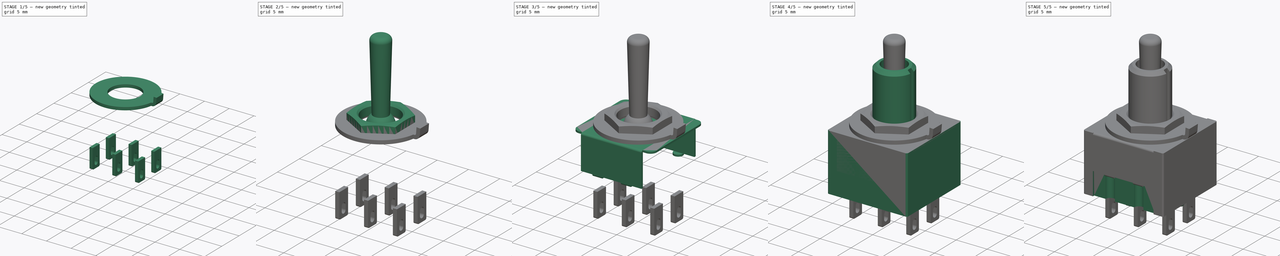
[diagram: build sequence overview — one tinted view per stage of 5, left to right]
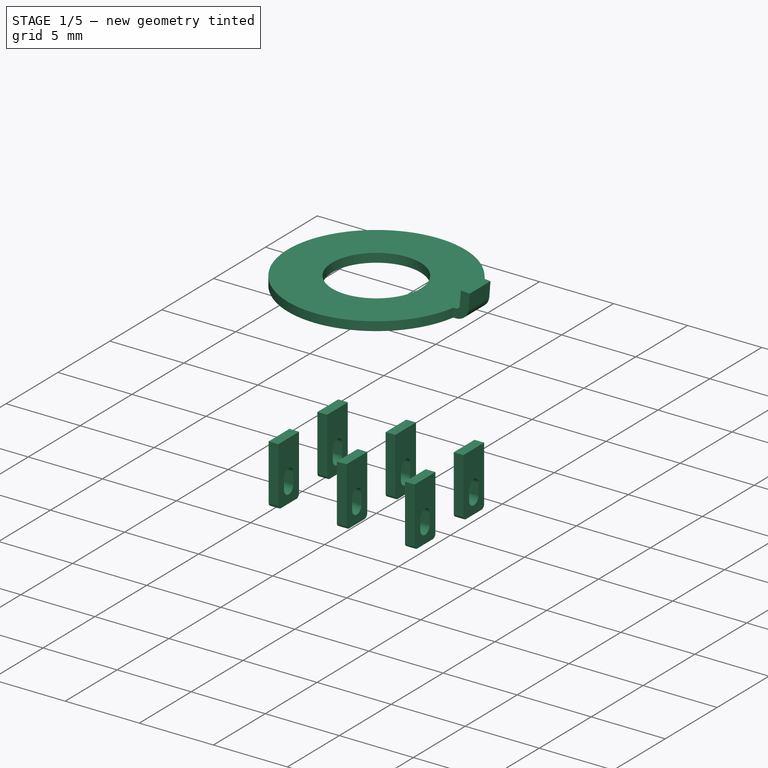
[diagram: stage 1 of 5 — iso view after this stage's code; geometry added in this stage tinted green]
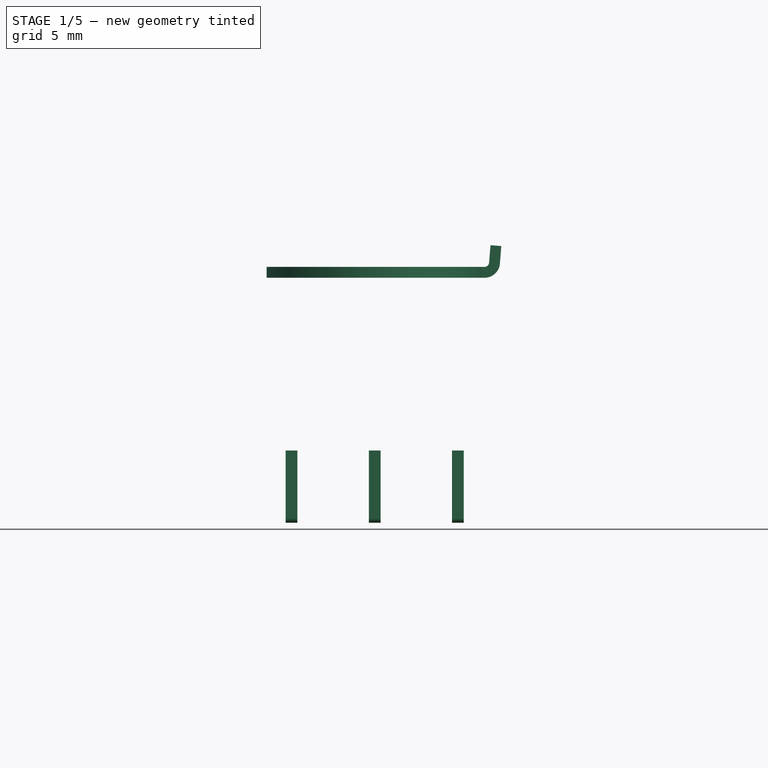
[diagram: stage 1 of 5 — front view after this stage's code; geometry added in this stage tinted green]
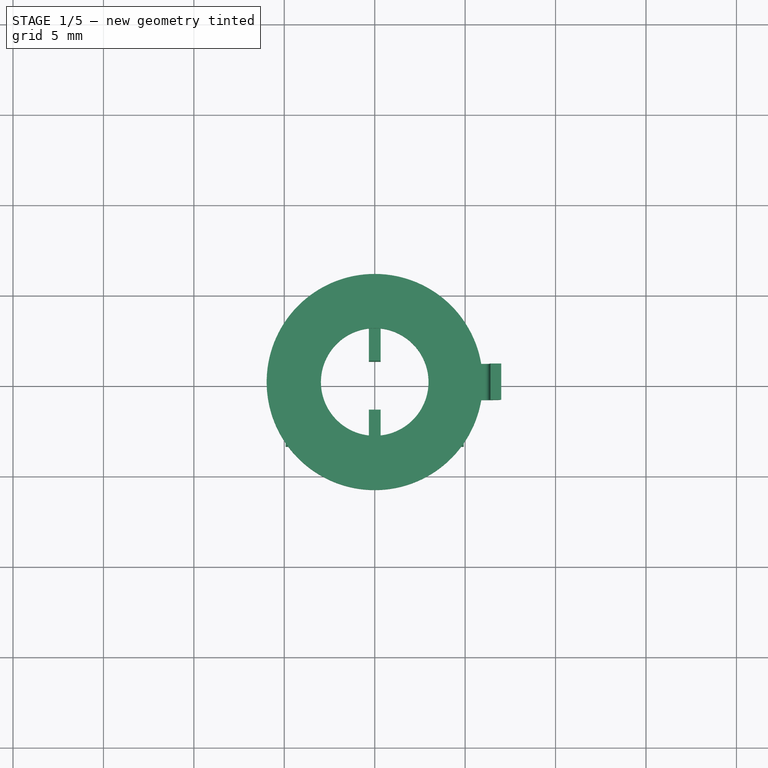
[diagram: stage 1 of 5 — top view after this stage's code; geometry added in this stage tinted green]
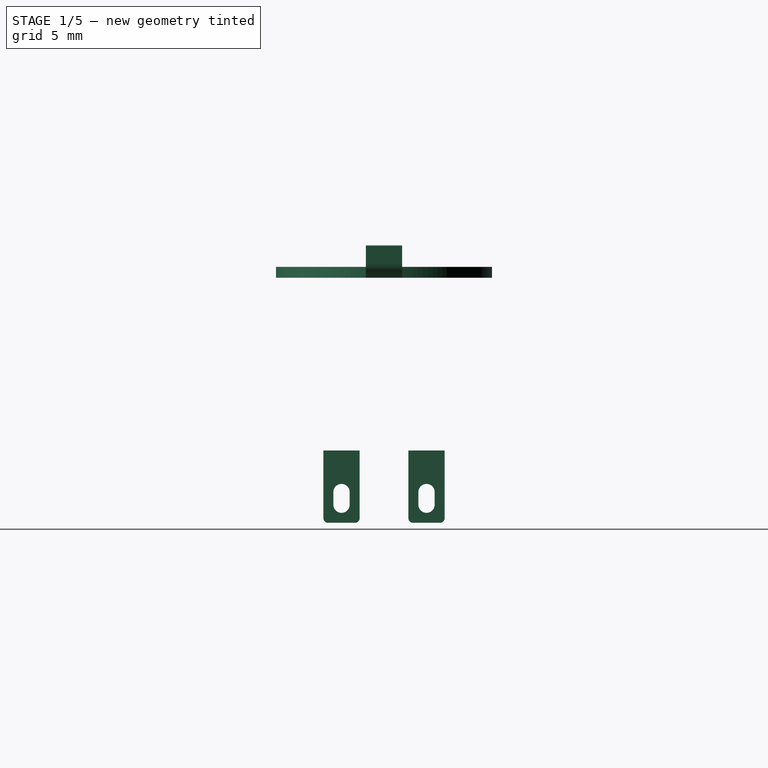
[diagram: stage 1 of 5 — right view after this stage's code; geometry added in this stage tinted green]
FCSTD DOCUMENT  (FreeCAD 0.20R29177 +426 (Git))
Label: 6mm DPDT Mini Toggle Switch
License: All rights reserved
LicenseURL: http://en.wikipedia.org/wiki/All_rights_reserved
objects: Sketcher::SketchObject×19, PartDesign::Pad×11, PartDesign::Body×7, PartDesign::Fillet×6, PartDesign::Pocket×6, PartDesign::Chamfer×2, PartDesign::Revolution×2, PartDesign::FeatureBase×1, Part::FeaturePython×1
note: 81 computed .brp shape members not serialized (recipe doc carries the construction recipe); baked Part::Feature solids carry a one-line shape summary decoded from their .brp

FEATURE [PartDesign::Body] Body004
  Group = -> [Clone]
  Origin = -> Origin004
  Placement = pos=(0,0,5.35) rot=(0,0,1;0rad)
  Tip = -> Clone
FEATURE [Sketcher::SketchObject] Sketch014
  FullyConstrained = true
  MapMode = 5
  Support = -> [XY_Plane005]
  sketch-geometry (2):
    g0: Circle CenterX=0 CenterY=0 CenterZ=0 NormalX=0 NormalY=0 NormalZ=1 AngleXU=0 Radius=5.975
    g1: Circle CenterX=0 CenterY=0 CenterZ=0 NormalX=0 NormalY=0 NormalZ=1 AngleXU=0 Radius=2.975
  constraints (4):
    c: Coincident(g0,g-1)
    c: Coincident(g1,g0)
    c: Diameter(g1) = 5.95
    c: Diameter(g0) = 11.95
FEATURE [PartDesign::Pad] Pad007
  Direction = (0,0,1)
  Length = 0.6
  Length2 = 10
  Profile = -> Sketch014
  ReferenceAxis = -> Sketch014 [N_Axis]
  Type = 0
FEATURE [Sketcher::SketchObject] Sketch015
  FullyConstrained = true
  MapMode = 5
  Placement = pos=(0,0,0) rot=(1,0,0;1.5708rad)
  Support = -> [XZ_Plane005]
  sketch-geometry (8):
    g0: LineSegment StartX=5.825 StartY=0.6 StartZ=0 EndX=6.075 EndY=0.6 EndZ=0
    g1: LineSegment StartX=6.3242 StartY=0.830034 StartZ=0 EndX=6.40192 EndY=1.8 EndZ=0
    g2: LineSegment StartX=6.40192 StartY=1.8 StartZ=0 EndX=7 EndY=1.75208 EndZ=0
    g3: LineSegment StartX=7 StartY=1.75208 StartZ=0 EndX=6.92228 EndY=0.782114 EndZ=0
    g4: LineSegment StartX=6.075 StartY=7e-16 StartZ=0 EndX=5.825 EndY=0 EndZ=0
    g5: LineSegment StartX=5.825 StartY=0 StartZ=0 EndX=5.825 EndY=0.6 EndZ=0
    g6: ArcOfCircle CenterX=6.075 CenterY=0.85 CenterZ=0 NormalX=0 NormalY=0 NormalZ=1 AngleXU=0 Radius=0.25 StartAngle=4.71239 EndAngle=6.20323
    g7: ArcOfCircle CenterX=6.075 CenterY=0.85 CenterZ=0 NormalX=0 NormalY=0 NormalZ=1 AngleXU=0 Radius=0.85 StartAngle=4.71239 EndAngle=6.20323
  constraints (21):
    c: Horizontal(g0)
    c: Coincident(g1,g2)
    c: Coincident(g2,g3)
    c: PointOnObject(g4,g-1)
    c: Coincident(g4,g5)
    c: Coincident(g5,g0)
    c: Vertical(g5)
    c: Equal(g5,g2)
    c: Parallel(g1,g3)
    c: Perpendicular(g1,g2)
    c: Tangent(g0,g6) = -1.5708
    c: Tangent(g1,g6) = -1.5708
    c: Tangent(g4,g7) = 1.5708
    c: Tangent(g3,g7) = 1.5708
    c: Coincident(g7,g6)
    c: Radius(g6) = 0.25
    c: DistanceX(g0,g6) = 0.25
    c: DistanceX(g-1,g2) = 7
    c: DistanceY(g-1,g1) = 1.8
    c: DistanceY(g5,g5) = 0.6
    c: DistanceX(g0,g2) = 1.175
FEATURE [PartDesign::Pad] Pad008
  BaseFeature = -> Pad007
  Direction = (0,-1,2e-16)
  Length = 2
  Length2 = 10
  Midplane = true
  Profile = -> Sketch015
  ReferenceAxis = -> Sketch015 [N_Axis]
  Refine = true
  Type = 0
FEATURE [PartDesign::Body] Body005
  Group = -> [Sketch014,Pad007,Sketch015,Pad008,Sketch016,Pad009]
  Origin = -> Origin005
  Placement = pos=(0,0,1.75) rot=(0,0,1;0rad)
  Tip = -> Pad009
FEATURE [Sketcher::SketchObject] Sketch017
  FullyConstrained = true
  MapMode = 5
  Support = -> [XY_Plane006]
  sketch-geometry (4):
    g0: LineSegment StartX=-0.325 StartY=1 StartZ=0 EndX=0.325 EndY=1 EndZ=0
    g1: LineSegment StartX=0.325 StartY=1 StartZ=0 EndX=0.325 EndY=-1 EndZ=0
    g2: LineSegment StartX=0.325 StartY=-1 StartZ=0 EndX=-0.325 EndY=-1 EndZ=0
    g3: LineSegment StartX=-0.325 StartY=-1 StartZ=0 EndX=-0.325 EndY=1 EndZ=0
  constraints (11):
    c: Coincident(g0,g1)
    c: Coincident(g1,g2)
    c: Coincident(g2,g3)
    c: Coincident(g3,g0)
    c: Horizontal(g0)
    c: Horizontal(g2)
    c: Vertical(g1)
    c: Vertical(g3)
    c: Symmetric(g1,g0,g-1)
    c: DistanceX(g0,g0) = 0.65
    c: DistanceY(g3,g3) = 2
FEATURE [PartDesign::Pad] Pad010
  Direction = (0,0,1)
  Length = 4
  Length2 = 10
  Profile = -> Sketch017
  ReferenceAxis = -> Sketch017 [N_Axis]
  Reversed = true
  Type = 0
FEATURE [Sketcher::SketchObject] Sketch018
  FullyConstrained = true
  MapMode = 5
  Placement = pos=(-0.325,0,0) rot=(0.57735,-0.57735,-0.57735;2.0944rad)
  Support = -> [Pad010]
  sketch-geometry (4):
    g0: ArcOfCircle CenterX=0 CenterY=-3 CenterZ=0 NormalX=0 NormalY=0 NormalZ=1 AngleXU=0 Radius=0.45 StartAngle=3.14159 EndAngle=6.28319
    g1: ArcOfCircle CenterX=0 CenterY=-2.3 CenterZ=0 NormalX=0 NormalY=0 NormalZ=1 AngleXU=0 Radius=0.45 StartAngle=1e-16 EndAngle=3.14159
    g2: LineSegment StartX=0.45 StartY=-3 StartZ=0 EndX=0.45 EndY=-2.3 EndZ=0
    g3: LineSegment StartX=-0.45 StartY=-2.3 StartZ=0 EndX=-0.45 EndY=-3 EndZ=0
  constraints (10):
    c: Tangent(g0,g2) = -1.5708
    c: Tangent(g2,g1) = -1.5708
    c: Tangent(g1,g3) = -1.5708
    c: Tangent(g3,g0) = -1.5708
    c: Equal(g0,g1)
    c: PointOnObject(g0,g-2)
    c: PointOnObject(g1,g-2)
    c: Diameter(g1) = 0.9
    c: DistanceY(g3,g3) = 0.7
    c: DistanceY(g1,g-1) = 2.3
FEATURE [PartDesign::Pocket] Pocket005
  BaseFeature = -> Pad010
  Direction = (1,0,0)
  Length = 5
  Length2 = 5
  Profile = -> Sketch018
  ReferenceAxis = -> Sketch018 [N_Axis]
  Type = 0
FEATURE [PartDesign::Fillet] Fillet005
  Base = -> Pocket005 [Edge4,Edge20]
  BaseFeature = -> Pocket005
  Radius = 0.25
  SupportTransform = false
  UseAllEdges = false
FEATURE [PartDesign::Body] Body006
  Group = -> [Sketch017,Pad010,Sketch018,Pocket005,Fillet005]
  Origin = -> Origin006
  Placement = pos=(-4.6,-2.35,-9.55) rot=(0,0,1;0rad)
  Tip = -> Fillet005
FEATURE [Part::FeaturePython] Array  # Draft array (typed FeaturePython)
  AlwaysSyncPlacement = false
  Angle = 360
  ArrayType = 0
  Axis = (0,0,1)
  Base = -> Body006
  Center = (0,0,0)
  Count = 6
  ExpandArray = false
  Fuse = false
  IntervalAxis = (0,0,0)
  IntervalX = (4.6,0,0)
  IntervalY = (0,4.7,0)
  IntervalZ = (0,0,100)
  NumberCircles = 3
  NumberPolar = 5
  NumberX = 3
  NumberY = 2
  NumberZ = 1
  PlacementList = 6 placements: [(-4.6,-2.35,-9.55),(-4.6,2.35,-9.55),(0,-2.35,-9.55),(0,2.35,-9.55),(4.6,-2.35,-9.55),(4.6,2.35,-9.55)]
  RadialDistance = 50
  ScaleList = (6) [(1,1,1),(1,1,1),(1,1,1),(1,1,1),(1,1,1),(1,1,1)]
  Symmetry = 1
  TangentialDistance = 25
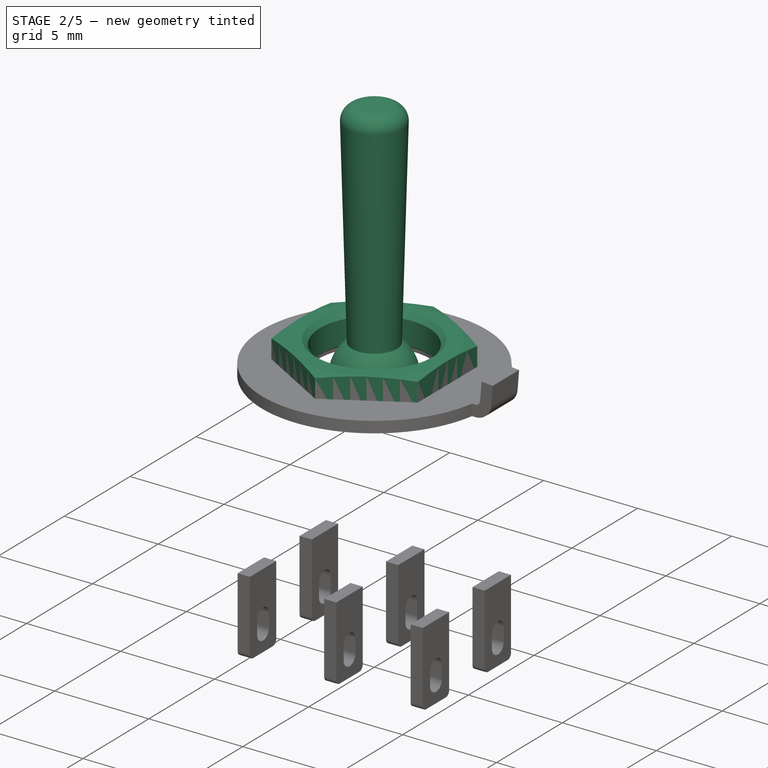
[diagram: stage 2 of 5 — iso view after this stage's code; geometry added in this stage tinted green]
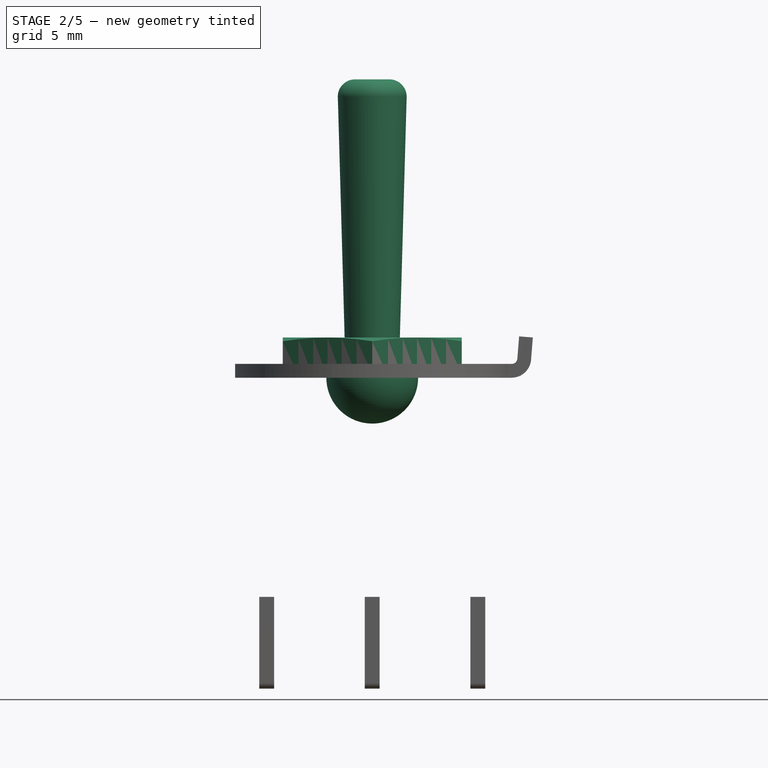
[diagram: stage 2 of 5 — front view after this stage's code; geometry added in this stage tinted green]
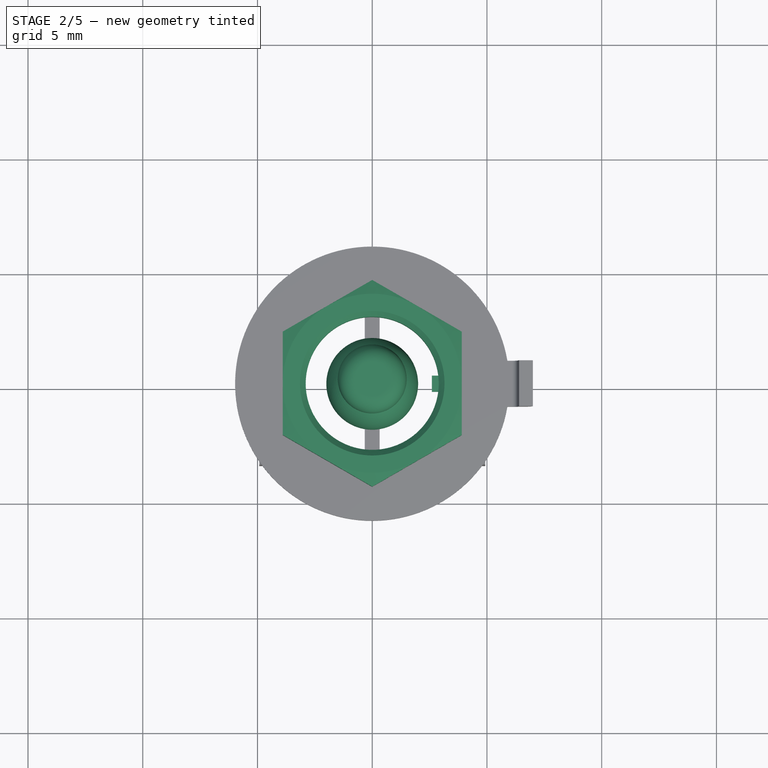
[diagram: stage 2 of 5 — top view after this stage's code; geometry added in this stage tinted green]
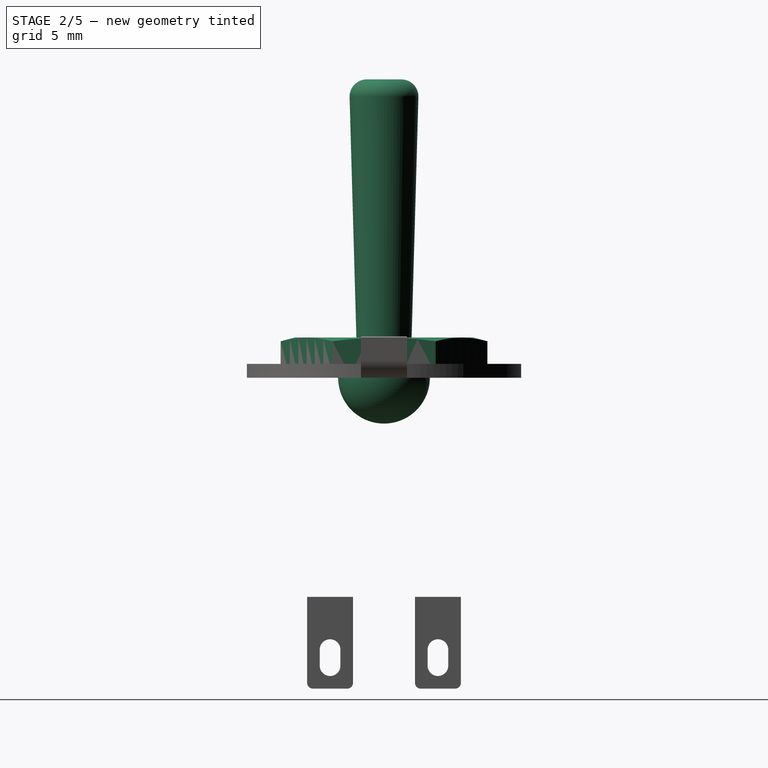
[diagram: stage 2 of 5 — right view after this stage's code; geometry added in this stage tinted green]
FEATURE [PartDesign::Body] Body001
  Group = -> [Sketch005,Pad003,Fillet003,Sketch006,Pad004,Sketch007,Pad005,Fillet004,Sketch008,Pad006,Sketch009,Pocket002,Chamfer,Sketch010,Pocket003]
  Origin = -> Origin001
  Tip = -> Pocket003
FEATURE [Sketcher::SketchObject] Sketch011
  FullyConstrained = true
  MapMode = 5
  Placement = pos=(0,0,0) rot=(1,0,0;1.5708rad)
  Support = -> [XZ_Plane002]
  sketch-geometry (5):
    g0: ArcOfCircle CenterX=0 CenterY=0 CenterZ=0 NormalX=0 NormalY=0 NormalZ=1 AngleXU=0 Radius=2 StartAngle=4.71239 EndAngle=7.21048
    g1: LineSegment StartX=1.5 StartY=12.2288 StartZ=0 EndX=1.2 EndY=1.6 EndZ=0
    g2: LineSegment StartX=0 StartY=13 StartZ=0 EndX=0 EndY=-2 EndZ=0
    g3: LineSegment StartX=0 StartY=13 StartZ=0 EndX=0.750299 EndY=13 EndZ=0
    g4: ArcOfCircle CenterX=0.750299 CenterY=12.25 CenterZ=0 NormalX=0 NormalY=0 NormalZ=1 AngleXU=0 Radius=0.75 StartAngle=6.25497 EndAngle=7.85398
  constraints (14):
    c: Coincident(g0,g-1)
    c: Coincident(g0,g1)
    c: PointOnObject(g0,g-2)
    c: Coincident(g2,g0)
    c: Vertical(g2)
    c: Coincident(g2,g3)
    c: Horizontal(g3)
    c: Tangent(g3,g4) = 1.5708
    c: Tangent(g1,g4) = 1.5708
    c: DistanceX(g2,g1) = 1.5
    c: Radius(g0) = 2
    c: DistanceX(g0,g0) = 1.2
    c: DistanceY(g0,g2) = 13
    c: Radius(g4) = 0.75
FEATURE [PartDesign::Revolution] Revolution
  Angle = 360
  Axis = (0,2e-16,1)
  Base = (0,0,0)
  Placement = pos=(0,0,0) rot=(1,0,0;1.5708rad)
  Profile = -> Sketch011
  ReferenceAxis = -> Sketch011 [V_Axis]
  Reversed = true
FEATURE [PartDesign::Body] Body002
  Group = -> [Sketch011,Revolution]
  Origin = -> Origin002
  Placement = pos=(0,0,6) rot=(0,1,0;0.174533rad)
  Tip = -> Revolution
FEATURE [Sketcher::SketchObject] Sketch012
  FullyConstrained = true
  MapMode = 5
  Placement = pos=(0,0,0) rot=(1,0,0;1.5708rad)
  Support = -> [XZ_Plane003]
  sketch-geometry (5):
    g0: LineSegment StartX=2.9 StartY=0.875 StartZ=0 EndX=2.9 EndY=-0.875 EndZ=0
    g1: LineSegment StartX=2.9 StartY=-0.875 StartZ=0 EndX=3.9 EndY=-0.875 EndZ=0
    g2: LineSegment StartX=3.9 StartY=-0.875 StartZ=0 EndX=7.16554 EndY=-1e-16 EndZ=0
    g3: LineSegment StartX=7.16554 StartY=-1e-16 StartZ=0 EndX=3.9 EndY=0.875 EndZ=0
    g4: LineSegment StartX=3.9 StartY=0.875 StartZ=0 EndX=2.9 EndY=0.875 EndZ=0
  constraints (14):
    c: Coincident(g0,g1)
    c: Horizontal(g1)
    c: Coincident(g1,g2)
    c: PointOnObject(g2,g-1)
    c: Coincident(g2,g3)
    c: Coincident(g3,g4)
    c: Coincident(g4,g0)
    c: Horizontal(g4)
    c: Symmetric(g0,g0,g-1)
    c: DistanceY(g0,g0) = 1.75
    c: DistanceX(g-1,g0) = 2.9
    c: DistanceX(g-1,g3) = 3.9
    c: Equal(g1,g4)
    c: Angle(g3,g2) = 0.523599
FEATURE [PartDesign::Revolution] Revolution001
  Angle = 360
  Axis = (0,2e-16,1)
  Base = (0,0,0)
  Placement = pos=(0,0,0) rot=(1,0,0;1.5708rad)
  Profile = -> Sketch012
  ReferenceAxis = -> Sketch012 [V_Axis]
  Reversed = true
FEATURE [Sketcher::SketchObject] Sketch013
  FullyConstrained = false
  MapMode = 5
  Placement = pos=(0,2e-16,0.875) rot=(0,0,1;3.14159rad)
  Support = -> [Revolution001]
  sketch-geometry (8):
    g0: LineSegment StartX=0 StartY=4.50333 StartZ=0 EndX=-3.9 EndY=2.25167 EndZ=0
    g1: LineSegment StartX=-3.9 StartY=2.25167 StartZ=0 EndX=-3.9 EndY=-2.25167 EndZ=0
    g2: LineSegment StartX=-3.9 StartY=-2.25167 StartZ=0 EndX=-1.04357e-11 EndY=-4.50333 EndZ=0
    g3: LineSegment StartX=-1.04357e-11 StartY=-4.50333 StartZ=0 EndX=3.9 EndY=-2.25167 EndZ=0
    g4: LineSegment StartX=3.9 StartY=-2.25167 StartZ=0 EndX=3.9 EndY=2.25167 EndZ=0
    g5: LineSegment StartX=3.9 StartY=2.25167 StartZ=0 EndX=0 EndY=4.50333 EndZ=0
    g6: Circle CenterX=0 CenterY=0 CenterZ=0 NormalX=0 NormalY=0 NormalZ=1 AngleXU=0 Radius=4.50333
    g7: Circle CenterX=0 CenterY=0 CenterZ=0 NormalX=0 NormalY=0 NormalZ=1 AngleXU=0 Radius=8.20375
  constraints (17):
    c: Coincident(g0,g1)
    c: Coincident(g1,g2)
    c: Coincident(g2,g3)
    c: Coincident(g3,g4)
    c: Coincident(g4,g5)
    c: Coincident(g5,g0)
    c: Equal(g0, g1-g5) x5
    c: PointOnObject(g0,g6)
    c: PointOnObject(g1,g6)
    c: PointOnObject(g2,g6)
    c: PointOnObject(g3,g6)
    c: PointOnObject(g4,g6)
    c: PointOnObject(g5,g6)
    c: Coincident(g6,g-1)
    c: PointOnObject(g5,g-2)
    c: DistanceX(g0,g4) = 7.8
    c: Coincident(g6,g7)
FEATURE [PartDesign::Pocket] Pocket004
  BaseFeature = -> Revolution001
  Direction = (0,-2e-16,-1)
  Length = 5
  Length2 = 5
  Placement = pos=(0,0,0) rot=(1,0,0;1.5708rad)
  Profile = -> Sketch013
  ReferenceAxis = -> Sketch013 [N_Axis]
  Type = 0
FEATURE [PartDesign::Chamfer] Chamfer001
  Angle = 45
  Base = -> Pocket004 [Edge2,Edge1]
  BaseFeature = -> Pocket004
  ChamferType = 0
  FlipDirection = false
  Placement = pos=(0,0,0) rot=(1,0,0;1.5708rad)
  Size = 0.25
  Size2 = 1
  SupportTransform = false
  UseAllEdges = false
FEATURE [PartDesign::Body] Body003
  Group = -> [Sketch012,Revolution001,Sketch013,Pocket004,Chamfer001]
  Origin = -> Origin003
  Placement = pos=(0,0,0.875) rot=(0,0,1;0rad)
  Tip = -> Chamfer001
FEATURE [PartDesign::FeatureBase] Clone
  BaseFeature = -> Body003
  Placement = pos=(0,0,0.875) rot=(0,0,1;0rad)
FEATURE [Sketcher::SketchObject] Sketch016
  FullyConstrained = true
  MapMode = 5
  Placement = pos=(0,0,0.6) rot=(0,0,1;0rad)
  Support = -> [Pad008]
  sketch-geometry (4):
    g0: LineSegment StartX=2.6 StartY=0.35 StartZ=0 EndX=3.4 EndY=0.35 EndZ=0
    g1: LineSegment StartX=3.4 StartY=0.35 StartZ=0 EndX=3.4 EndY=-0.35 EndZ=0
    g2: LineSegment StartX=3.4 StartY=-0.35 StartZ=0 EndX=2.6 EndY=-0.35 EndZ=0
    g3: LineSegment StartX=2.6 StartY=-0.35 StartZ=0 EndX=2.6 EndY=0.35 EndZ=0
  constraints (11):
    c: Coincident(g0,g1)
    c: Coincident(g1,g2)
    c: Coincident(g2,g3)
    c: Coincident(g3,g0)
    c: Horizontal(g0)
    c: Horizontal(g2)
    c: Vertical(g1)
    c: Symmetric(g0,g2,g-1)
    c: DistanceY(g3,g3) = 0.7
    c: DistanceX(g-1,g0) = 2.6
    c: DistanceX(g0,g0) = 0.8
FEATURE [PartDesign::Pad] Pad009
  BaseFeature = -> Pad008
  Direction = (0,0,1)
  Length = 0.6
  Length2 = 10
  Profile = -> Sketch016
  ReferenceAxis = -> Sketch016 [N_Axis]
  Refine = true
  Reversed = true
  Type = 0
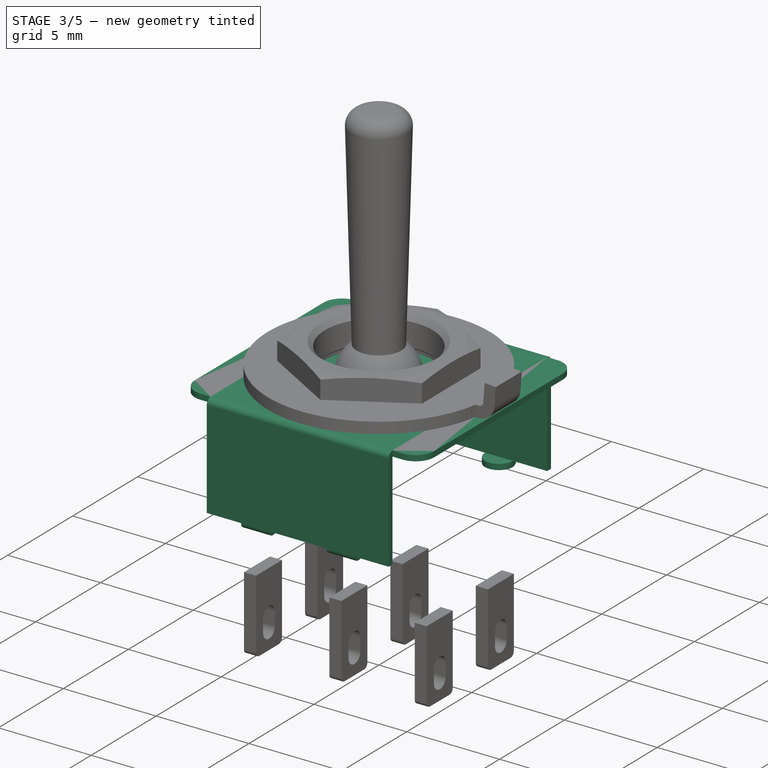
[diagram: stage 3 of 5 — iso view after this stage's code; geometry added in this stage tinted green]
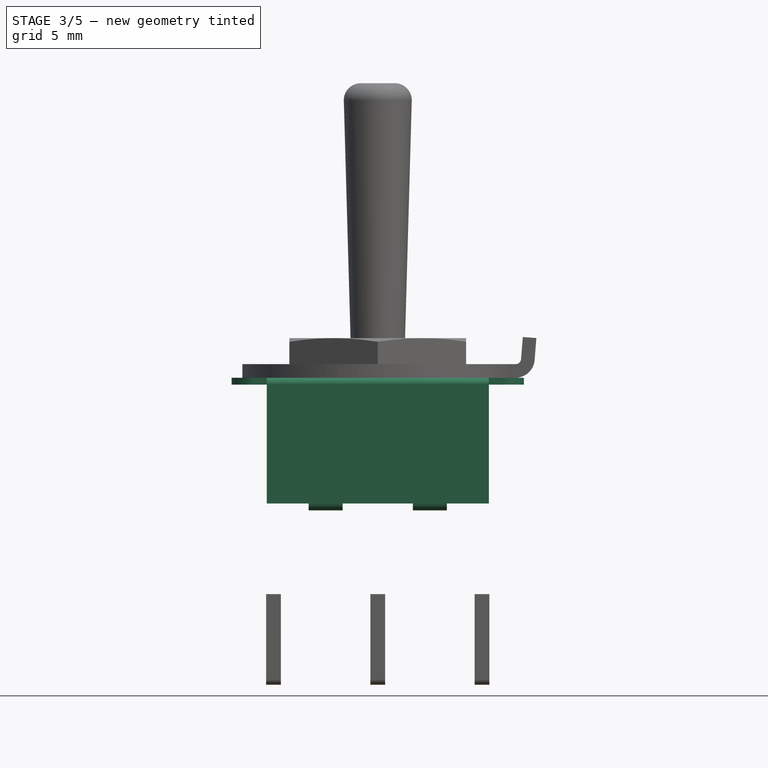
[diagram: stage 3 of 5 — front view after this stage's code; geometry added in this stage tinted green]
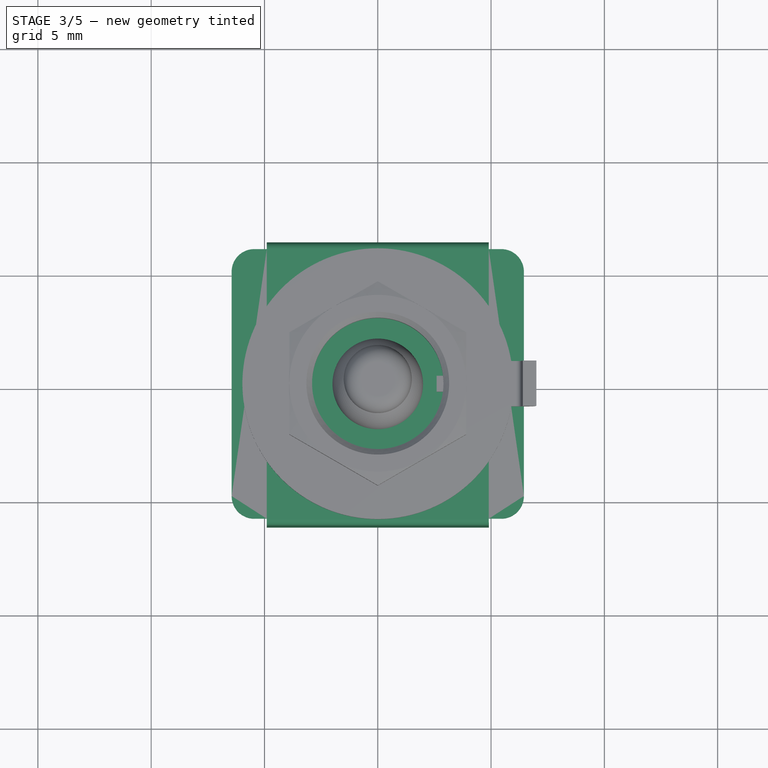
[diagram: stage 3 of 5 — top view after this stage's code; geometry added in this stage tinted green]
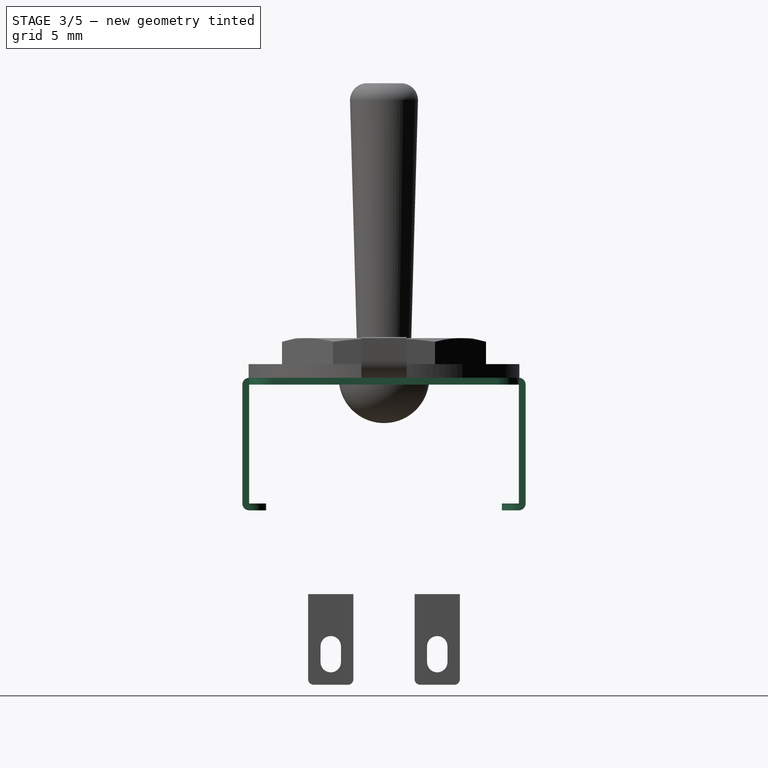
[diagram: stage 3 of 5 — right view after this stage's code; geometry added in this stage tinted green]
FEATURE [PartDesign::Body] Body
  Group = -> [Sketch,Pad,Fillet,Sketch001,Pocket,Sketch002,Pocket001,Sketch003,Pad001,Fillet001,Sketch004,Pad002,Fillet002]
  Origin = -> Origin
  Placement = pos=(0,0,-0.3) rot=(0,0,1;0rad)
  Tip = -> Fillet002
FEATURE [Sketcher::SketchObject] Sketch005
  FullyConstrained = true
  MapMode = 5
  Support = -> [XY_Plane001]
  sketch-geometry (4):
    g0: LineSegment StartX=-6.45 StartY=5.95 StartZ=0 EndX=6.45 EndY=5.95 EndZ=0
    g1: LineSegment StartX=6.45 StartY=5.95 StartZ=0 EndX=6.45 EndY=-5.95 EndZ=0
    g2: LineSegment StartX=6.45 StartY=-5.95 StartZ=0 EndX=-6.45 EndY=-5.95 EndZ=0
    g3: LineSegment StartX=-6.45 StartY=-5.95 StartZ=0 EndX=-6.45 EndY=5.95 EndZ=0
  constraints (11):
    c: Coincident(g0,g1)
    c: Coincident(g1,g2)
    c: Coincident(g2,g3)
    c: Coincident(g3,g0)
    c: Horizontal(g0)
    c: Horizontal(g2)
    c: Vertical(g1)
    c: Vertical(g3)
    c: Symmetric(g1,g0,g-1)
    c: DistanceX(g0,g0) = 12.9
    c: DistanceY(g3,g3) = 11.9
FEATURE [PartDesign::Pad] Pad003
  Direction = (0,0,1)
  Length = 0.3
  Length2 = 10
  Profile = -> Sketch005
  ReferenceAxis = -> Sketch005 [N_Axis]
  Reversed = true
  Type = 0
FEATURE [PartDesign::Fillet] Fillet003
  Base = -> Pad003 [Edge8,Edge1,Edge2,Edge5]
  BaseFeature = -> Pad003
  Radius = 1
  SupportTransform = false
  UseAllEdges = false
FEATURE [Sketcher::SketchObject] Sketch006
  FullyConstrained = false
  MapMode = 5
  Support = -> [Fillet003]
  sketch-geometry (8):
    g0: LineSegment StartX=-4.90152 StartY=6.25 StartZ=0 EndX=4.89848 EndY=6.25 EndZ=0
    g1: LineSegment StartX=4.89848 StartY=6.25 StartZ=0 EndX=4.89848 EndY=5.95 EndZ=0
    g2: LineSegment StartX=4.90152 StartY=-6.25 StartZ=0 EndX=-4.9 EndY=-6.25 EndZ=0
    g3: LineSegment StartX=-4.9 StartY=-6.25 StartZ=0 EndX=-4.9 EndY=-5.95 EndZ=0
    g4: LineSegment StartX=-4.9 StartY=5.95 StartZ=0 EndX=4.89848 EndY=5.95 EndZ=0
    g5: LineSegment StartX=4.9 StartY=-5.95 StartZ=0 EndX=-4.9 EndY=-5.95 EndZ=0
    g6: LineSegment StartX=-4.9 StartY=5.95 StartZ=0 EndX=-4.90152 EndY=6.25 EndZ=0
    g7: LineSegment StartX=4.9 StartY=-5.95 StartZ=0 EndX=4.90152 EndY=-6.25 EndZ=0
  constraints (19):
    c: Coincident(g0,g1)
    c: Coincident(g7,g2)
    c: Coincident(g2,g3)
    c: Coincident(g6,g0)
    c: Horizontal(g0)
    c: Horizontal(g2)
    c: Vertical(g1)
    c: Vertical(g3)
    c: Symmetric(g0,g7,g-1)
    c: DistanceY(g3,g6) = 12.5
    c: DistanceX(g0,g0) = 9.8
    c: Horizontal(g4)
    c: Horizontal(g5)
    c: Coincident(g3,g5)
    c: Coincident(g6,g4)
    c: Coincident(g1,g4)
    c: Coincident(g7,g5)
    c: Equal(g6,g3)
    c: DistanceY(g6,g6) = 0.3
FEATURE [PartDesign::Pad] Pad004
  BaseFeature = -> Fillet003
  Direction = (0,0,1)
  Length = 5.55
  Length2 = 10
  Profile = -> Sketch006
  ReferenceAxis = -> Sketch006 [N_Axis]
  Refine = true
  Reversed = true
  Type = 0
FEATURE [Sketcher::SketchObject] Sketch007
  ExternalGeometry = -> [Pad004]
  FullyConstrained = true
  MapMode = 5
  Placement = pos=(0,0,-5.55) rot=(1,0,0;3.14159rad)
  Support = -> [Pad004]
  sketch-geometry (16):
    g0: ArcOfCircle CenterX=-2.3 CenterY=5.95 CenterZ=0 NormalX=0 NormalY=0 NormalZ=1 AngleXU=0 Radius=0.75 StartAngle=3.14159 EndAngle=6.28319
    g1: LineSegment StartX=-3.05 StartY=6.25 StartZ=0 EndX=-3.05 EndY=5.95 EndZ=0
    g2: LineSegment StartX=-1.55 StartY=5.95 StartZ=0 EndX=-1.55 EndY=6.25 EndZ=0
    g3: ArcOfCircle CenterX=2.3 CenterY=5.95 CenterZ=0 NormalX=0 NormalY=0 NormalZ=1 AngleXU=0 Radius=0.75 StartAngle=3.14159 EndAngle=6.28319
    g4: LineSegment StartX=1.55 StartY=6.25 StartZ=0 EndX=1.55 EndY=5.95 EndZ=0
    g5: LineSegment StartX=3.05 StartY=5.95 StartZ=0 EndX=3.05 EndY=6.25 EndZ=0
    g6: ArcOfCircle CenterX=-2.3 CenterY=-5.95 CenterZ=0 NormalX=0 NormalY=0 NormalZ=1 AngleXU=0 Radius=0.75 StartAngle=2e-16 EndAngle=3.14159
    g7: LineSegment StartX=-3.05 StartY=-5.95 StartZ=0 EndX=-3.05 EndY=-6.25 EndZ=0
    g8: LineSegment StartX=-1.55 StartY=-6.25 StartZ=0 EndX=-1.55 EndY=-5.95 EndZ=0
    g9: ArcOfCircle CenterX=2.3 CenterY=-5.95 CenterZ=0 NormalX=0 NormalY=0 NormalZ=1 AngleXU=0 Radius=0.75 StartAngle=0 EndAngle=3.14159
    g10: LineSegment StartX=1.55 StartY=-5.95 StartZ=0 EndX=1.55 EndY=-6.25 EndZ=0
    g11: LineSegment StartX=3.05 StartY=-6.25 StartZ=0 EndX=3.05 EndY=-5.95 EndZ=0
    g12: LineSegment StartX=-3.05 StartY=6.25 StartZ=0 EndX=-1.55 EndY=6.25 EndZ=0
    g13: LineSegment StartX=1.55 StartY=6.25 StartZ=0 EndX=3.05 EndY=6.25 EndZ=0
    g14: LineSegment StartX=-3.05 StartY=-6.25 StartZ=0 EndX=-1.55 EndY=-6.25 EndZ=0
    g15: LineSegment StartX=1.55 StartY=-6.25 StartZ=0 EndX=3.05 EndY=-6.25 EndZ=0
  constraints (41):
    c: Tangent(g1,g0) = -1.5708
    c: Tangent(g0,g2) = -1.5708
    c: Vertical(g1)
    c: Tangent(g4,g3) = -1.5708
    c: Tangent(g3,g5) = -1.5708
    c: Vertical(g4)
    c: Tangent(g6,g7) = -1.5708
    c: Tangent(g8,g6) = -1.5708
    c: Vertical(g7)
    c: Tangent(g9,g10) = -1.5708
    c: Tangent(g11,g9) = -1.5708
    c: Vertical(g10)
    c: Horizontal(g12)
    c: Horizontal(g15)
    c: Horizontal(g14)
    c: Coincident(g7,g14)
    c: Coincident(g8,g14)
    c: Coincident(g10,g15)
    c: Coincident(g11,g15)
    c: Coincident(g2,g12)
    c: Coincident(g1,g12)
    c: Coincident(g4,g13)
    c: Coincident(g5,g13)
    c: Horizontal(g13)
    c: Vertical(g5)
    c: Vertical(g2)
    c: Vertical(g8)
    c: Vertical(g11)
    c: PointOnObject(g11,g-4)
    c: PointOnObject(g8,g-4)
    c: PointOnObject(g2,g-3)
    c: PointOnObject(g4,g-3)
    c: Symmetric(g3,g0,g-2)
    c: Symmetric(g6,g9,g-2)
    c: Symmetric(g6,g0,g-1)
    c: DistanceX(g0,g3) = 4.6
    c: Equal(g0,g3)
    c: Equal(g3,g6)
    c: Equal(g6,g9)
    c: DistanceY(g1,g1) = 0.3
    c: DistanceX(g12,g12) = 1.5
FEATURE [PartDesign::Pad] Pad005
  BaseFeature = -> Pad004
  Direction = (0,0,-1)
  Length = 0.3
  Length2 = 10
  Profile = -> Sketch007
  ReferenceAxis = -> Sketch007 [N_Axis]
  Refine = true
  Type = 0
FEATURE [PartDesign::Fillet] Fillet004
  Base = -> Pad005 [Edge102,Edge105,Edge118,Edge113,Edge18,Edge10]
  BaseFeature = -> Pad005
  Radius = 0.3
  SupportTransform = false
  UseAllEdges = false
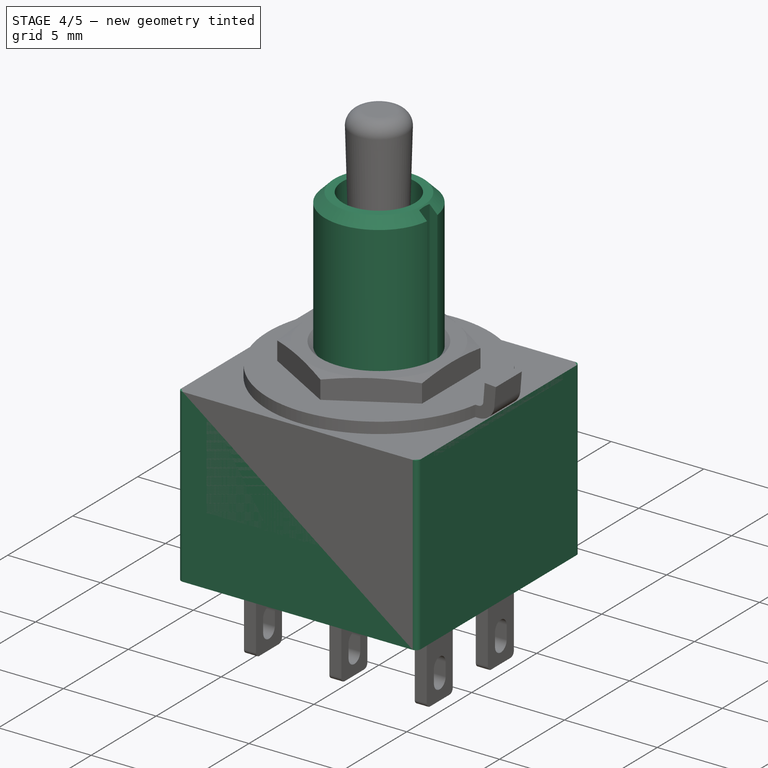
[diagram: stage 4 of 5 — iso view after this stage's code; geometry added in this stage tinted green]
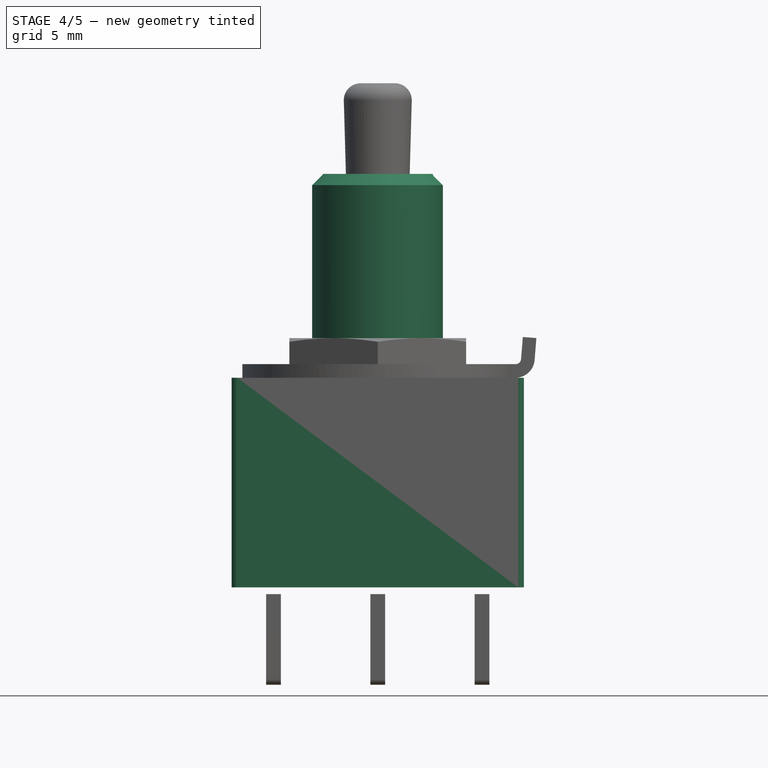
[diagram: stage 4 of 5 — front view after this stage's code; geometry added in this stage tinted green]
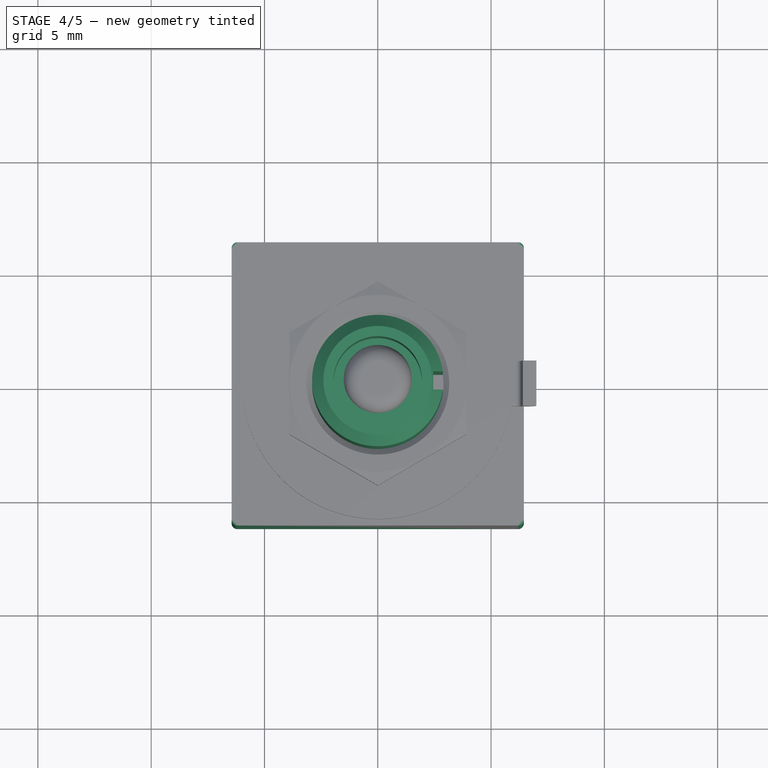
[diagram: stage 4 of 5 — top view after this stage's code; geometry added in this stage tinted green]
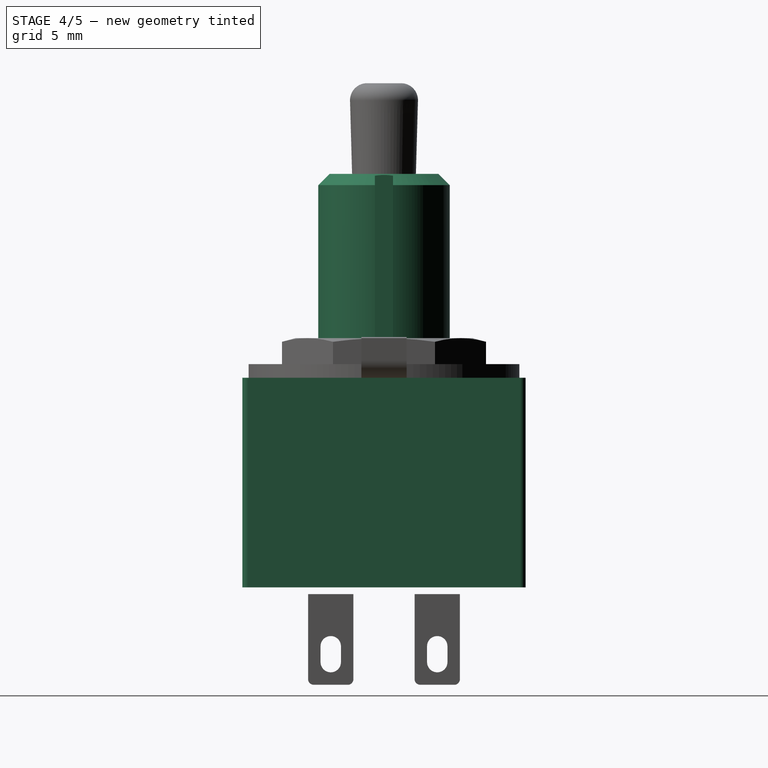
[diagram: stage 4 of 5 — right view after this stage's code; geometry added in this stage tinted green]
FEATURE [Sketcher::SketchObject] Sketch
  FullyConstrained = true
  MapMode = 5
  Support = -> [XY_Plane]
  sketch-geometry (4):
    g0: LineSegment StartX=-6.45 StartY=6.25 StartZ=0 EndX=6.45 EndY=6.25 EndZ=0
    g1: LineSegment StartX=6.45 StartY=6.25 StartZ=0 EndX=6.45 EndY=-6.25 EndZ=0
    g2: LineSegment StartX=6.45 StartY=-6.25 StartZ=0 EndX=-6.45 EndY=-6.25 EndZ=0
    g3: LineSegment StartX=-6.45 StartY=-6.25 StartZ=0 EndX=-6.45 EndY=6.25 EndZ=0
  constraints (11):
    c: Coincident(g0,g1)
    c: Coincident(g1,g2)
    c: Coincident(g2,g3)
    c: Coincident(g3,g0)
    c: Horizontal(g0)
    c: Horizontal(g2)
    c: Vertical(g1)
    c: Vertical(g3)
    c: Symmetric(g0,g1,g-1)
    c: DistanceX(g0,g0) = 12.9
    c: DistanceY(g3,g3) = 12.5
FEATURE [PartDesign::Pad] Pad
  Direction = (0,0,1)
  Length = 9.25
  Length2 = 10
  Profile = -> Sketch
  ReferenceAxis = -> Sketch [N_Axis]
  Reversed = true
  Type = 0
FEATURE [PartDesign::Fillet] Fillet
  Base = -> Pad [Edge5,Edge8,Edge1,Edge2]
  BaseFeature = -> Pad
  Radius = 0.25
  SupportTransform = false
  UseAllEdges = false
FEATURE [Sketcher::SketchObject] Sketch008
  FullyConstrained = true
  MapMode = 5
  Support = -> [Fillet004]
  sketch-geometry (1):
    g0: Circle CenterX=0 CenterY=0 CenterZ=0 NormalX=0 NormalY=0 NormalZ=1 AngleXU=0 Radius=2.9
  constraints (2):
    c: Coincident(g0,g-1)
    c: Diameter(g0) = 5.8
FEATURE [PartDesign::Pad] Pad006
  BaseFeature = -> Fillet004
  Direction = (0,0,1)
  Length = 9
  Length2 = 10
  Profile = -> Sketch008
  ReferenceAxis = -> Sketch008 [N_Axis]
  Type = 0
FEATURE [Sketcher::SketchObject] Sketch009
  FullyConstrained = true
  MapMode = 5
  Placement = pos=(0,0,9) rot=(0,0,1;0rad)
  Support = -> [Pad006]
  sketch-geometry (1):
    g0: Circle CenterX=0 CenterY=0 CenterZ=0 NormalX=0 NormalY=0 NormalZ=1 AngleXU=0 Radius=1.95
  constraints (2):
    c: Coincident(g0,g-1)
    c: Diameter(g0) = 3.9
FEATURE [PartDesign::Pocket] Pocket002
  BaseFeature = -> Pad006
  Direction = (0,0,-1)
  Length = 5
  Length2 = 5
  Profile = -> Sketch009
  ReferenceAxis = -> Sketch009 [N_Axis]
  Type = 0
FEATURE [PartDesign::Chamfer] Chamfer
  Angle = 45
  Base = -> Pocket002 [Edge43]
  BaseFeature = -> Pocket002
  ChamferType = 0
  FlipDirection = false
  Size = 0.5
  Size2 = 1
  SupportTransform = false
  UseAllEdges = false
FEATURE [Sketcher::SketchObject] Sketch010
  FullyConstrained = true
  MapMode = 5
  Placement = pos=(0,0,9) rot=(0,0,1;0rad)
  Support = -> [Chamfer]
  sketch-geometry (4):
    g0: LineSegment StartX=2.45 StartY=0.4 StartZ=0 EndX=2.95 EndY=0.4 EndZ=0
    g1: LineSegment StartX=2.95 StartY=0.4 StartZ=0 EndX=2.95 EndY=-0.4 EndZ=0
    g2: LineSegment StartX=2.95 StartY=-0.4 StartZ=0 EndX=2.45 EndY=-0.4 EndZ=0
    g3: LineSegment StartX=2.45 StartY=-0.4 StartZ=0 EndX=2.45 EndY=0.4 EndZ=0
  constraints (11):
    c: Coincident(g0,g1)
    c: Coincident(g1,g2)
    c: Coincident(g2,g3)
    c: Coincident(g3,g0)
    c: Horizontal(g0)
    c: Horizontal(g2)
    c: Vertical(g1)
    c: Symmetric(g0,g2,g-1)
    c: DistanceY(g3,g3) = 0.8
    c: DistanceX(g-1,g0) = 2.45
    c: DistanceX(g0,g0) = 0.5
FEATURE [PartDesign::Pocket] Pocket003
  BaseFeature = -> Chamfer
  Direction = (0,0,-1)
  Length = 9
  Length2 = 5
  Profile = -> Sketch010
  ReferenceAxis = -> Sketch010 [N_Axis]
  Refine = true
  Type = 0
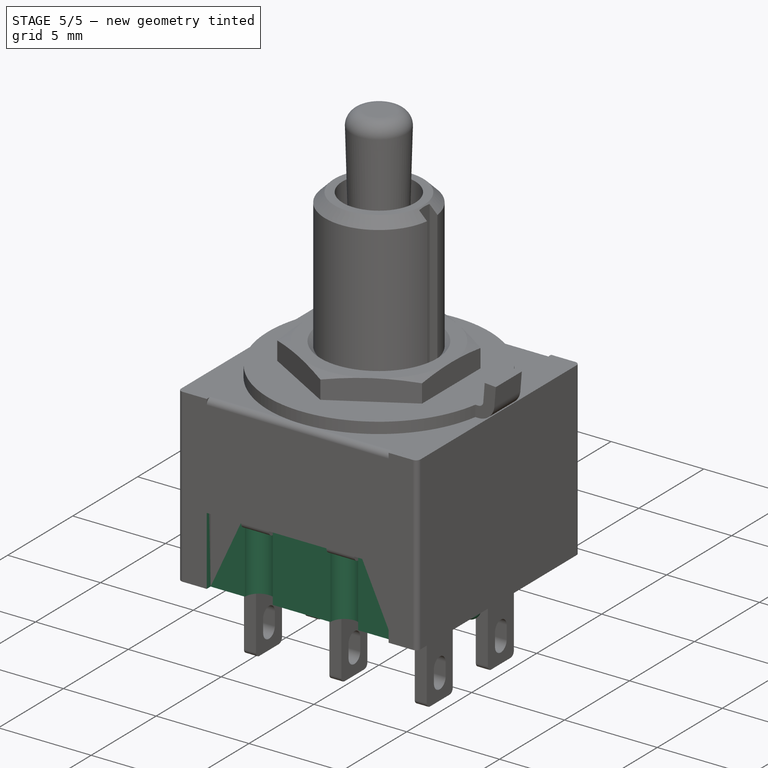
[diagram: stage 5 of 5 — iso view after this stage's code; geometry added in this stage tinted green]
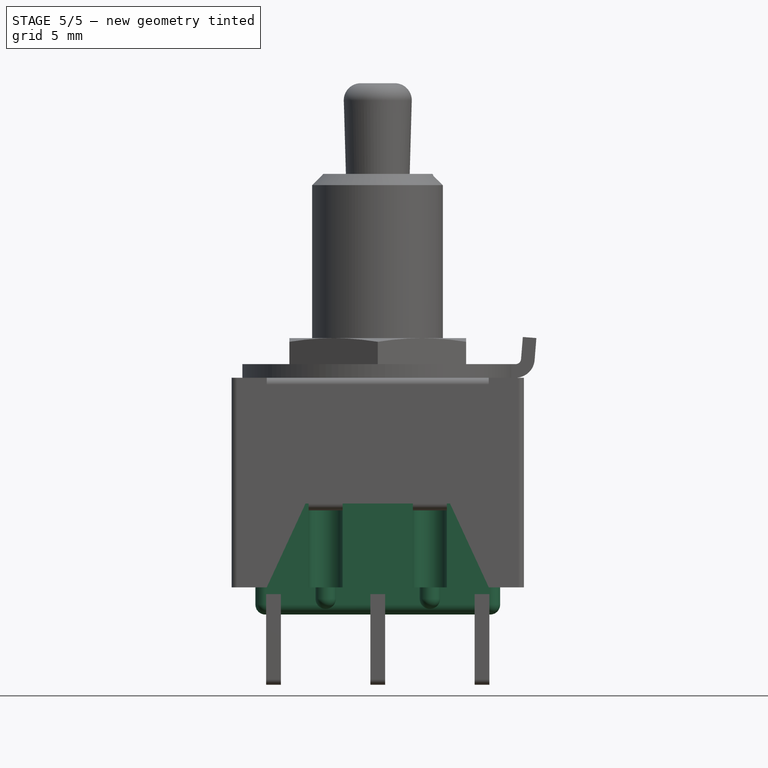
[diagram: stage 5 of 5 — front view after this stage's code; geometry added in this stage tinted green]
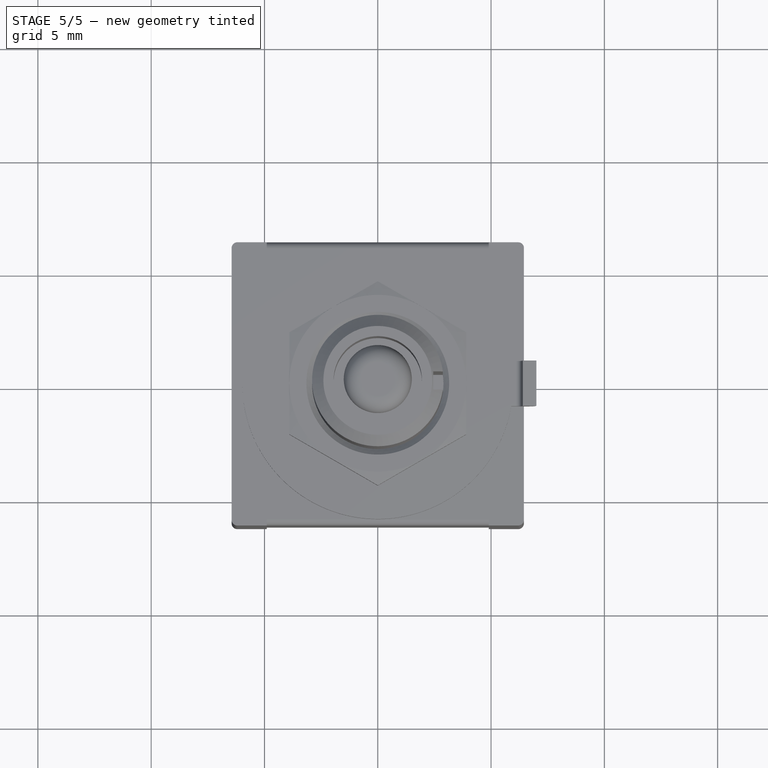
[diagram: stage 5 of 5 — top view after this stage's code; geometry added in this stage tinted green]
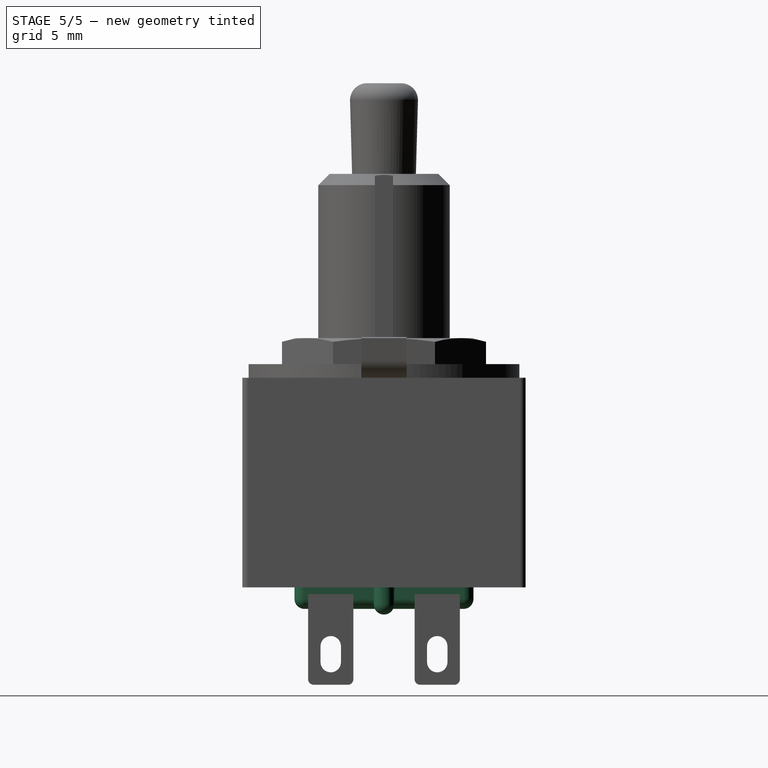
[diagram: stage 5 of 5 — right view after this stage's code; geometry added in this stage tinted green]
FEATURE [Sketcher::SketchObject] Sketch001
  ExternalGeometry = -> [Fillet]
  FullyConstrained = true
  MapMode = 5
  Support = -> [Fillet]
  sketch-geometry (8):
    g0: LineSegment StartX=-4.9 StartY=-6.25 StartZ=0 EndX=4.9 EndY=-6.25 EndZ=0
    g1: LineSegment StartX=4.9 StartY=-6.25 StartZ=0 EndX=4.9 EndY=-5.95 EndZ=0
    g2: LineSegment StartX=4.9 StartY=-5.95 StartZ=0 EndX=-4.9 EndY=-5.95 EndZ=0
    g3: LineSegment StartX=-4.9 StartY=-5.95 StartZ=0 EndX=-4.9 EndY=-6.25 EndZ=0
    g4: LineSegment StartX=-4.9 StartY=6.25 StartZ=0 EndX=4.9 EndY=6.25 EndZ=0
    g5: LineSegment StartX=4.9 StartY=6.25 StartZ=0 EndX=4.9 EndY=5.95 EndZ=0
    g6: LineSegment StartX=4.9 StartY=5.95 StartZ=0 EndX=-4.9 EndY=5.95 EndZ=0
    g7: LineSegment StartX=-4.9 StartY=5.95 StartZ=0 EndX=-4.9 EndY=6.25 EndZ=0
  constraints (22):
    c: Coincident(g0,g1)
    c: Coincident(g1,g2)
    c: Coincident(g2,g3)
    c: Coincident(g3,g0)
    c: Horizontal(g0)
    c: Vertical(g1)
    c: Vertical(g3)
    c: Coincident(g4,g5)
    c: Coincident(g5,g6)
    c: Coincident(g6,g7)
    c: Coincident(g7,g4)
    c: Horizontal(g4)
    c: Horizontal(g6)
    c: Vertical(g5)
    c: Vertical(g7)
    c: PointOnObject(g4,g-3)
    c: PointOnObject(g0,g-4)
    c: Symmetric(g2,g1,g-2)
    c: Symmetric(g2,g6,g-1)
    c: DistanceY(g-4,g2) = 0.3
    c: DistanceX(g2,g2) = 9.8
    c: Equal(g6,g2)
FEATURE [PartDesign::Pocket] Pocket
  BaseFeature = -> Fillet
  Direction = (0,0,-1)
  Length = 5
  Length2 = 5
  Profile = -> Sketch001
  ReferenceAxis = -> Sketch001 [N_Axis]
  Type = 1
FEATURE [Sketcher::SketchObject] Sketch002
  ExternalGeometry = -> [Pocket]
  FullyConstrained = true
  MapMode = 5
  Placement = pos=(0,0,-9.25) rot=(1,0,0;3.14159rad)
  Support = -> [Pocket]
  sketch-geometry (4):
    g0: Circle CenterX=-2.3 CenterY=5.95 CenterZ=0 NormalX=0 NormalY=0 NormalZ=1 AngleXU=0 Radius=0.75
    g1: Circle CenterX=2.3 CenterY=5.95 CenterZ=0 NormalX=0 NormalY=0 NormalZ=1 AngleXU=0 Radius=0.75
    g2: Circle CenterX=-2.3 CenterY=-5.95 CenterZ=0 NormalX=0 NormalY=0 NormalZ=1 AngleXU=0 Radius=0.75
    g3: Circle CenterX=2.3 CenterY=-5.95 CenterZ=0 NormalX=0 NormalY=0 NormalZ=1 AngleXU=0 Radius=0.75
  constraints (11):
    c: PointOnObject(g0,g-3)
    c: PointOnObject(g2,g-4)
    c: PointOnObject(g3,g-4)
    c: Symmetric(g1,g0,g-2)
    c: DistanceX(g0,g1) = 4.6
    c: Vertical(g0,g2)
    c: Vertical(g1,g3)
    c: Equal(g0,g1)
    c: Equal(g1,g3)
    c: Equal(g3,g2)
    c: Diameter(g0) = 1.5
FEATURE [PartDesign::Pocket] Pocket001
  BaseFeature = -> Pocket
  Direction = (0,0,1)
  Length = 4
  Length2 = 5
  Profile = -> Sketch002
  ReferenceAxis = -> Sketch002 [N_Axis]
  Type = 0
FEATURE [Sketcher::SketchObject] Sketch003
  ExternalGeometry = -> [Pocket001]
  FullyConstrained = true
  MapMode = 5
  Placement = pos=(0,0,0) rot=(1,0,0;1.5708rad)
  Support = -> [XZ_Plane]
  sketch-geometry (8):
    g0: ArcOfCircle CenterX=-2.3 CenterY=-9.25 CenterZ=0 NormalX=0 NormalY=0 NormalZ=1 AngleXU=0 Radius=0.45 StartAngle=1.3e-15 EndAngle=3.14159
    g1: ArcOfCircle CenterX=-2.3 CenterY=-9.75 CenterZ=0 NormalX=0 NormalY=0 NormalZ=1 AngleXU=0 Radius=0.45 StartAngle=3.14159 EndAngle=6.28319
    g2: LineSegment StartX=-2.75 StartY=-9.25 StartZ=0 EndX=-2.75 EndY=-9.75 EndZ=0
    g3: LineSegment StartX=-1.85 StartY=-9.75 StartZ=0 EndX=-1.85 EndY=-9.25 EndZ=0
    g4: ArcOfCircle CenterX=2.3 CenterY=-9.25 CenterZ=0 NormalX=0 NormalY=0 NormalZ=1 AngleXU=0 Radius=0.45 StartAngle=1.4e-15 EndAngle=3.14159
    g5: ArcOfCircle CenterX=2.3 CenterY=-9.75 CenterZ=0 NormalX=0 NormalY=0 NormalZ=1 AngleXU=0 Radius=0.45 StartAngle=3.14159 EndAngle=6.28319
    g6: LineSegment StartX=1.85 StartY=-9.25 StartZ=0 EndX=1.85 EndY=-9.75 EndZ=0
    g7: LineSegment StartX=2.75 StartY=-9.75 StartZ=0 EndX=2.75 EndY=-9.25 EndZ=0
  constraints (19):
    c: Tangent(g0,g2) = -1.5708
    c: Tangent(g2,g1) = -1.5708
    c: Tangent(g1,g3) = -1.5708
    c: Tangent(g3,g0) = -1.5708
    c: Equal(g0,g1)
    c: Vertical(g2)
    c: Tangent(g4,g6) = -1.5708
    c: Tangent(g6,g5) = -1.5708
    c: Tangent(g5,g7) = -1.5708
    c: Tangent(g7,g4) = -1.5708
    c: Equal(g4,g5)
    c: Vertical(g6)
    c: Equal(g0,g4)
    c: Equal(g3,g6)
    c: Symmetric(g0,g4,g-2)
    c: PointOnObject(g0,g-3)
    c: DistanceX(g0,g4) = 4.6
    c: Diameter(g0) = 0.9
    c: DistanceY(g7,g7) = 0.5
FEATURE [PartDesign::Pad] Pad001
  BaseFeature = -> Pocket001
  Direction = (0,-1,2e-16)
  Length = 7.9
  Length2 = 10
  Midplane = true
  Profile = -> Sketch003
  ReferenceAxis = -> Sketch003 [N_Axis]
  Type = 0
FEATURE [PartDesign::Fillet] Fillet001
  Base = -> Pad001 [Edge82,Edge90,Edge94,Edge86]
  BaseFeature = -> Pad001
  Radius = 0.44
  SupportTransform = false
  UseAllEdges = false
FEATURE [Sketcher::SketchObject] Sketch004
  ExternalGeometry = -> [Fillet001]
  FullyConstrained = true
  MapMode = 5
  Placement = pos=(0,0,0) rot=(0.57735,0.57735,0.57735;2.0944rad)
  Support = -> [YZ_Plane]
  sketch-geometry (4):
    g0: ArcOfCircle CenterX=0 CenterY=-9.25 CenterZ=0 NormalX=0 NormalY=0 NormalZ=1 AngleXU=0 Radius=0.45 StartAngle=1e-15 EndAngle=3.14159
    g1: ArcOfCircle CenterX=0 CenterY=-10 CenterZ=0 NormalX=0 NormalY=0 NormalZ=1 AngleXU=0 Radius=0.45 StartAngle=3.14159 EndAngle=6.28319
    g2: LineSegment StartX=-0.45 StartY=-9.25 StartZ=0 EndX=-0.45 EndY=-10 EndZ=0
    g3: LineSegment StartX=0.45 StartY=-10 StartZ=0 EndX=0.45 EndY=-9.25 EndZ=0
  constraints (10):
    c: Tangent(g0,g2) = -1.5708
    c: Tangent(g2,g1) = -1.5708
    c: Tangent(g1,g3) = -1.5708
    c: Tangent(g3,g0) = -1.5708
    c: Equal(g0,g1)
    c: Vertical(g2)
    c: PointOnObject(g0,g-3)
    c: PointOnObject(g0,g-2)
    c: Diameter(g0) = 0.9
    c: DistanceY(g2,g2) = 0.75
FEATURE [PartDesign::Pad] Pad002
  BaseFeature = -> Fillet001
  Direction = (1,-2e-16,3e-16)
  Length = 10.8
  Length2 = 10
  Midplane = true
  Profile = -> Sketch004
  ReferenceAxis = -> Sketch004 [N_Axis]
  Type = 0
FEATURE [PartDesign::Fillet] Fillet002
  Base = -> Pad002 [Edge111,Edge144]
  BaseFeature = -> Pad002
  Radius = 0.44
  SupportTransform = false
  UseAllEdges = false
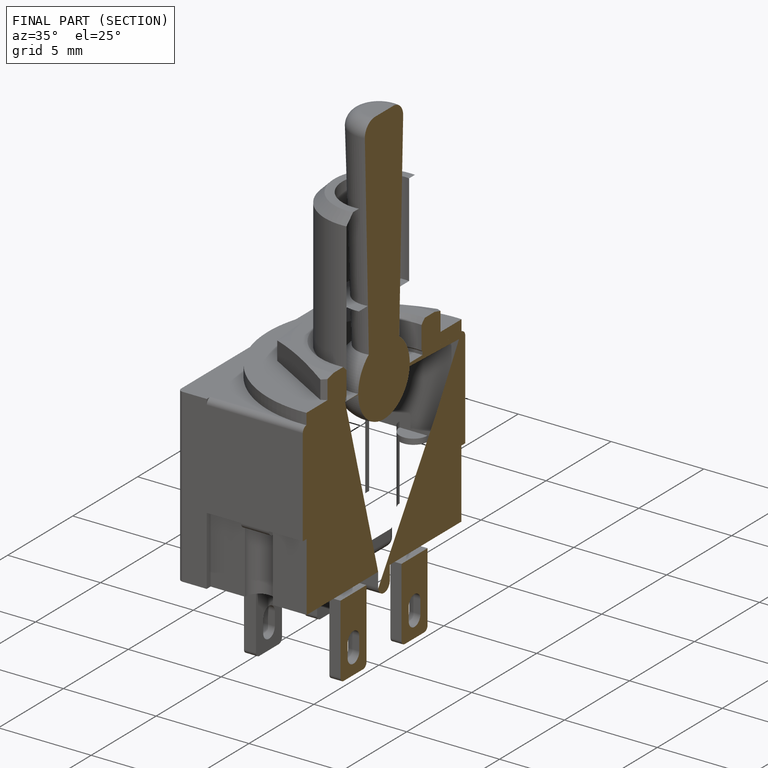
[diagram: finished part — half-section view (interior)]
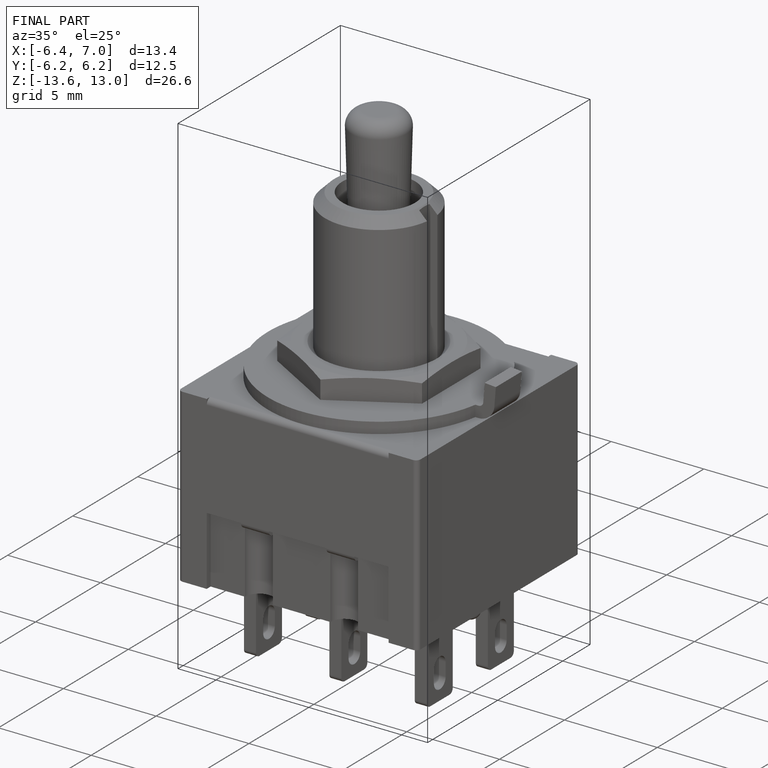
[diagram: finished part — iso view with bounding-box wireframe]
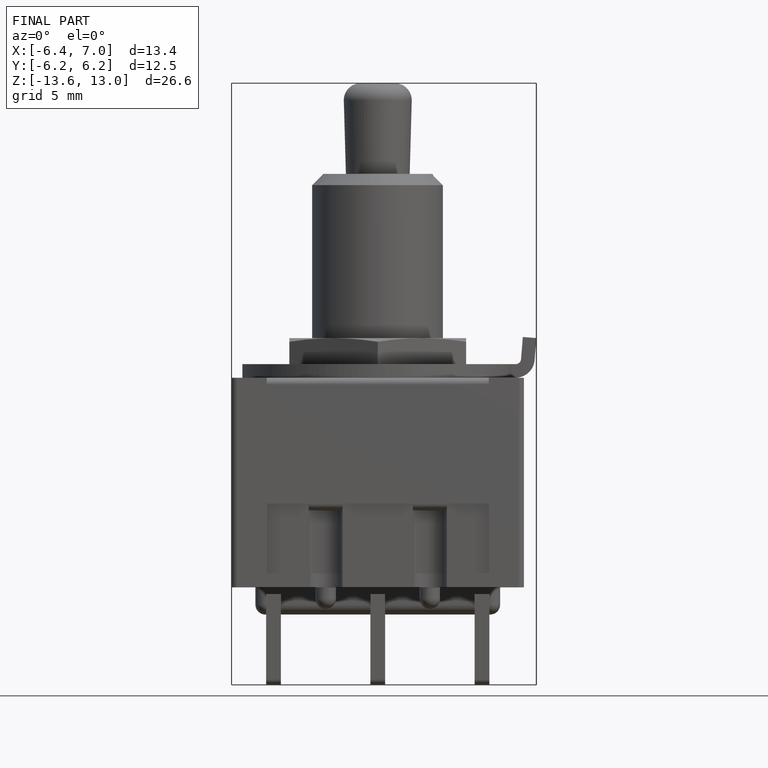
[diagram: finished part — front view with bounding-box wireframe]
